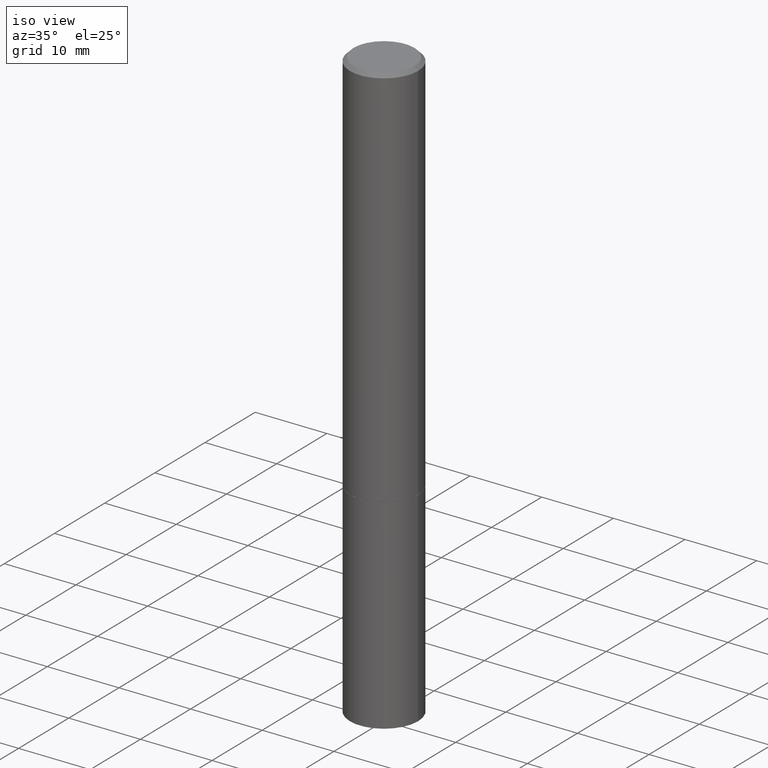
[diagram: clean part render]
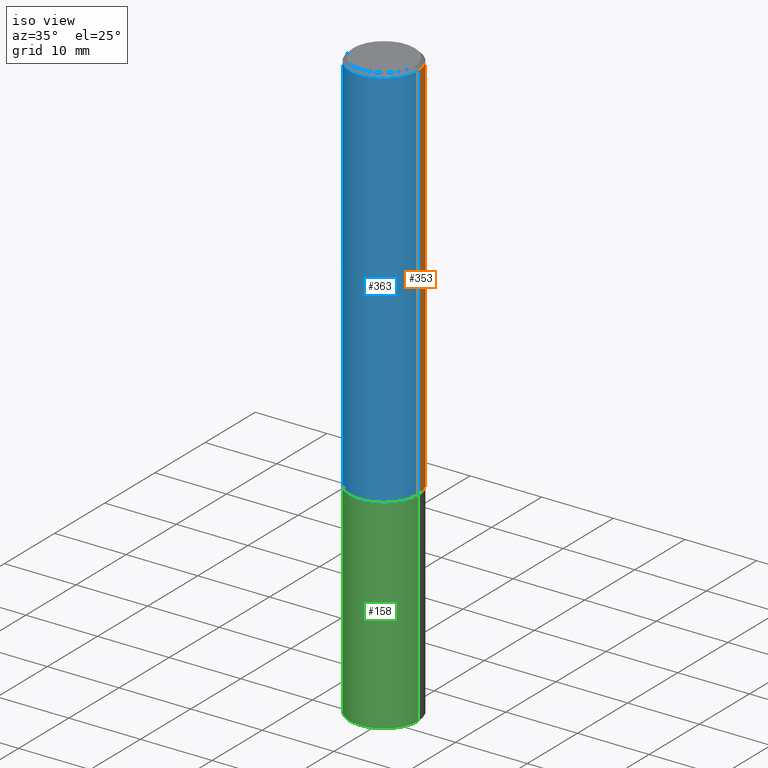
[diagram: same view with three faces highlighted in distinct colors, each labeled with its STEP entity id]
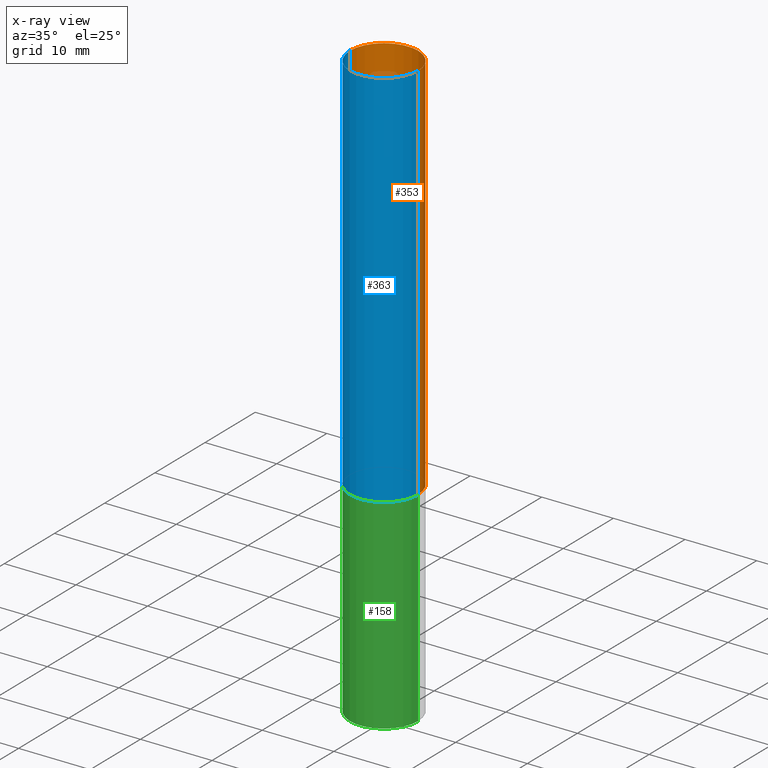
[diagram: x-ray of the same camera — body ghosted, the three highlighted faces saturated]
A machine part, iso view with three faces highlighted in distinct colors.
The next image is the same camera in x-ray (body ghosted, the three faces saturated) — at least one of them is partly hidden behind the body in this view.
Their STEP definitions:

[orange] entity #353 — the highlighted cylindrical surface (partial cylindrical patch) has radius 4.7625 mm, axis along (-0, 0, 1).
#4 = AXIS2_PLACEMENT_3D ( 'NONE', #116, #366, #5 ) ;
#5 = DIRECTION ( 'NONE',  ( 1.000000000000000000, -6.982962677686266711E-15, 0.000000000000000000 ) ) ;
#11 = AXIS2_PLACEMENT_3D ( 'NONE', #104, #349, #330 ) ;
#13 = ORIENTED_EDGE ( 'NONE', *, *, #143, .F. ) ;
#22 = CARTESIAN_POINT ( 'NONE',  ( -0.1874999999999997502, 1.239475875289309935E-15, -0.02000000000000004205 ) ) ;
#49 = DIRECTION ( 'NONE',  ( -2.445468806185136877E-29, 3.491481338843145188E-15, 1.000000000000000000 ) ) ;
#50 = EDGE_CURVE ( 'NONE', #120, #173, #259, .T. ) ;
#55 = VERTEX_POINT ( 'NONE', #323 ) ;
#57 = VERTEX_POINT ( 'NONE', #126 ) ;
#66 = LINE ( 'NONE', #357, #342 ) ;
#70 = ORIENTED_EDGE ( 'NONE', *, *, #138, .T. ) ;
#88 = DIRECTION ( 'NONE',  ( 1.000000000000000000, -6.982962677686265922E-15, 4.876176775795935793E-29 ) ) ;
#91 = DIRECTION ( 'NONE',  ( -2.445468806185136597E-29, 3.491481338843145583E-15, 1.000000000000000000 ) ) ;
#95 = ORIENTED_EDGE ( 'NONE', *, *, #352, .T. ) ;
#104 = CARTESIAN_POINT ( 'NONE',  ( 4.890937612370283668E-31, -6.982962677686305168E-17, -0.02000000000000004205 ) ) ;
#116 = CARTESIAN_POINT ( 'NONE',  ( 5.194175744337229665E-29, -7.415906363702840616E-15, -2.123999999999999666 ) ) ;
#120 = VERTEX_POINT ( 'NONE', #355 ) ;
#126 = CARTESIAN_POINT ( 'NONE',  ( -0.1875000000000000278, -2.410600365689662531E-15, -2.123999999999999666 ) ) ;
#138 = EDGE_CURVE ( 'NONE', #57, #173, #66, .T. ) ;
#143 = EDGE_CURVE ( 'NONE', #55, #120, #361, .T. ) ;
#144 = FACE_OUTER_BOUND ( 'NONE', #295, .T. ) ;
#145 = ORIENTED_EDGE ( 'NONE', *, *, #50, .F. ) ;
#173 = VERTEX_POINT ( 'NONE', #22 ) ;
#220 = AXIS2_PLACEMENT_3D ( 'NONE', #291, #91, #88 ) ;
#259 = CIRCLE ( 'NONE', #11, 0.1874999999999997502 ) ;
#269 = VECTOR ( 'NONE', #279, 39.37007874015748143 ) ;
#279 = DIRECTION ( 'NONE',  ( -2.445468806185136877E-29, 3.491481338843145188E-15, 1.000000000000000000 ) ) ;
#281 = CYLINDRICAL_SURFACE ( 'NONE', #220, 0.1874999999999998890 ) ;
#291 = CARTESIAN_POINT ( 'NONE',  ( 0.000000000000000000, 0.000000000000000000, 0.000000000000000000 ) ) ;
#295 = EDGE_LOOP ( 'NONE', ( #95, #70, #145, #13 ) ) ;
#305 = CARTESIAN_POINT ( 'NONE',  ( 0.1874999999999998890, -1.309305502066174022E-15, 9.142831454617374006E-30 ) ) ;
#306 = CIRCLE ( 'NONE', #4, 0.1875000000000000278 ) ;
#323 = CARTESIAN_POINT ( 'NONE',  ( 0.1875000000000000278, -8.725211865769015625E-15, -2.123999999999999666 ) ) ;
#330 = DIRECTION ( 'NONE',  ( 1.000000000000000000, -6.982962677686265133E-15, 0.000000000000000000 ) ) ;
#342 = VECTOR ( 'NONE', #49, 39.37007874015748143 ) ;
#349 = DIRECTION ( 'NONE',  ( -2.445468806185136597E-29, 3.491481338843145583E-15, 1.000000000000000000 ) ) ;
#352 = EDGE_CURVE ( 'NONE', #55, #57, #306, .T. ) ;
#353 = ADVANCED_FACE ( 'NONE', ( #144 ), #281, .T. ) ;
#355 = CARTESIAN_POINT ( 'NONE',  ( 0.1874999999999997502, -1.356173001359023494E-15, -0.02000000000000004205 ) ) ;
#357 = CARTESIAN_POINT ( 'NONE',  ( -0.1874999999999998890, 1.332267629550187060E-15, -9.223003294227942385E-30 ) ) ;
#361 = LINE ( 'NONE', #305, #269 ) ;
#366 = DIRECTION ( 'NONE',  ( -2.445468806185136597E-29, 3.491481338843145583E-15, 1.000000000000000000 ) ) ;

[blue] entity #363 — the highlighted cylindrical surface (partial cylindrical patch) has radius 4.7625 mm, axis along (-0, 0, 1).
#22 = CARTESIAN_POINT ( 'NONE',  ( -0.1874999999999997502, 1.239475875289309935E-15, -0.02000000000000004205 ) ) ;
#27 = AXIS2_PLACEMENT_3D ( 'NONE', #80, #83, #111 ) ;
#49 = DIRECTION ( 'NONE',  ( -2.445468806185136877E-29, 3.491481338843145188E-15, 1.000000000000000000 ) ) ;
#55 = VERTEX_POINT ( 'NONE', #323 ) ;
#56 = CYLINDRICAL_SURFACE ( 'NONE', #97, 0.1874999999999998890 ) ;
#57 = VERTEX_POINT ( 'NONE', #126 ) ;
#66 = LINE ( 'NONE', #357, #342 ) ;
#80 = CARTESIAN_POINT ( 'NONE',  ( 5.194175744337229665E-29, -7.415906363702840616E-15, -2.123999999999999666 ) ) ;
#83 = DIRECTION ( 'NONE',  ( -2.445468806185136597E-29, 3.491481338843145583E-15, 1.000000000000000000 ) ) ;
#97 = AXIS2_PLACEMENT_3D ( 'NONE', #149, #117, #177 ) ;
#111 = DIRECTION ( 'NONE',  ( 1.000000000000000000, -6.982962677686266711E-15, 0.000000000000000000 ) ) ;
#117 = DIRECTION ( 'NONE',  ( -2.445468806185136597E-29, 3.491481338843145583E-15, 1.000000000000000000 ) ) ;
#120 = VERTEX_POINT ( 'NONE', #355 ) ;
#126 = CARTESIAN_POINT ( 'NONE',  ( -0.1875000000000000278, -2.410600365689662531E-15, -2.123999999999999666 ) ) ;
#138 = EDGE_CURVE ( 'NONE', #57, #173, #66, .T. ) ;
#143 = EDGE_CURVE ( 'NONE', #55, #120, #361, .T. ) ;
#149 = CARTESIAN_POINT ( 'NONE',  ( 0.000000000000000000, 0.000000000000000000, 0.000000000000000000 ) ) ;
#152 = ORIENTED_EDGE ( 'NONE', *, *, #247, .T. ) ;
#159 = ORIENTED_EDGE ( 'NONE', *, *, #138, .F. ) ;
#173 = VERTEX_POINT ( 'NONE', #22 ) ;
#177 = DIRECTION ( 'NONE',  ( 1.000000000000000000, -6.982962677686265922E-15, 4.876176775795935793E-29 ) ) ;
#196 = DIRECTION ( 'NONE',  ( -2.445468806185136597E-29, 3.491481338843145583E-15, 1.000000000000000000 ) ) ;
#214 = EDGE_CURVE ( 'NONE', #173, #120, #317, .T. ) ;
#247 = EDGE_CURVE ( 'NONE', #57, #55, #354, .T. ) ;
#249 = DIRECTION ( 'NONE',  ( 1.000000000000000000, -6.982962677686265133E-15, 0.000000000000000000 ) ) ;
#269 = VECTOR ( 'NONE', #279, 39.37007874015748143 ) ;
#279 = DIRECTION ( 'NONE',  ( -2.445468806185136877E-29, 3.491481338843145188E-15, 1.000000000000000000 ) ) ;
#285 = EDGE_LOOP ( 'NONE', ( #159, #152, #351, #310 ) ) ;
#287 = FACE_OUTER_BOUND ( 'NONE', #285, .T. ) ;
#305 = CARTESIAN_POINT ( 'NONE',  ( 0.1874999999999998890, -1.309305502066174022E-15, 9.142831454617374006E-30 ) ) ;
#310 = ORIENTED_EDGE ( 'NONE', *, *, #214, .F. ) ;
#317 = CIRCLE ( 'NONE', #333, 0.1874999999999997502 ) ;
#323 = CARTESIAN_POINT ( 'NONE',  ( 0.1875000000000000278, -8.725211865769015625E-15, -2.123999999999999666 ) ) ;
#333 = AXIS2_PLACEMENT_3D ( 'NONE', #338, #196, #249 ) ;
#338 = CARTESIAN_POINT ( 'NONE',  ( 4.890937612370283668E-31, -6.982962677686305168E-17, -0.02000000000000004205 ) ) ;
#342 = VECTOR ( 'NONE', #49, 39.37007874015748143 ) ;
#351 = ORIENTED_EDGE ( 'NONE', *, *, #143, .T. ) ;
#354 = CIRCLE ( 'NONE', #27, 0.1875000000000000278 ) ;
#355 = CARTESIAN_POINT ( 'NONE',  ( 0.1874999999999997502, -1.356173001359023494E-15, -0.02000000000000004205 ) ) ;
#357 = CARTESIAN_POINT ( 'NONE',  ( -0.1874999999999998890, 1.332267629550187060E-15, -9.223003294227942385E-30 ) ) ;
#361 = LINE ( 'NONE', #305, #269 ) ;
#363 = ADVANCED_FACE ( 'NONE', ( #287 ), #56, .T. ) ;

[green] entity #158 — the highlighted cylindrical surface (partial cylindrical patch) has radius 4.7625 mm, axis along (-0, 0, 1).
#3 = AXIS2_PLACEMENT_3D ( 'NONE', #45, #308, #171 ) ;
#21 = DIRECTION ( 'NONE',  ( 1.000000000000000000, -6.982962677686261189E-15, 0.000000000000000000 ) ) ;
#44 = CIRCLE ( 'NONE', #3, 0.1875000000000000278 ) ;
#45 = CARTESIAN_POINT ( 'NONE',  ( 5.196621213143415268E-29, -7.419397845041683624E-15, -2.125000000000000000 ) ) ;
#51 = FACE_OUTER_BOUND ( 'NONE', #210, .T. ) ;
#53 = AXIS2_PLACEMENT_3D ( 'NONE', #303, #77, #21 ) ;
#63 = AXIS2_PLACEMENT_3D ( 'NONE', #360, #170, #168 ) ;
#77 = DIRECTION ( 'NONE',  ( -2.445468806185136597E-29, 3.491481338843145583E-15, 1.000000000000000000 ) ) ;
#90 = ORIENTED_EDGE ( 'NONE', *, *, #223, .F. ) ;
#107 = DIRECTION ( 'NONE',  ( -2.445468806185136877E-29, 3.491481338843145188E-15, 1.000000000000000000 ) ) ;
#123 = ORIENTED_EDGE ( 'NONE', *, *, #286, .F. ) ;
#132 = CARTESIAN_POINT ( 'NONE',  ( -0.1875000000000000278, 1.332267629550188046E-15, -9.223003294227947991E-30 ) ) ;
#136 = CARTESIAN_POINT ( 'NONE',  ( 0.1875000000000000278, -1.265661985330639786E-14, -3.250000000000000000 ) ) ;
#148 = ORIENTED_EDGE ( 'NONE', *, *, #254, .T. ) ;
#158 = ADVANCED_FACE ( 'NONE', ( #51 ), #193, .T. ) ;
#162 = VECTOR ( 'NONE', #107, 39.37007874015748143 ) ;
#165 = CARTESIAN_POINT ( 'NONE',  ( -0.1875000000000000278, -8.051088468590765387E-15, -2.125000000000000000 ) ) ;
#166 = CARTESIAN_POINT ( 'NONE',  ( -0.1875000000000000278, -8.051088468590765387E-15, -3.250000000000000000 ) ) ;
#168 = DIRECTION ( 'NONE',  ( 1.000000000000000000, -6.982962677686265922E-15, 4.876176775795935793E-29 ) ) ;
#170 = DIRECTION ( 'NONE',  ( -2.445468806185136597E-29, 3.491481338843145583E-15, 1.000000000000000000 ) ) ;
#171 = DIRECTION ( 'NONE',  ( 1.000000000000000000, -6.982962677686266711E-15, 0.000000000000000000 ) ) ;
#176 = VERTEX_POINT ( 'NONE', #166 ) ;
#191 = VERTEX_POINT ( 'NONE', #165 ) ;
#193 = CYLINDRICAL_SURFACE ( 'NONE', #63, 0.1875000000000000278 ) ;
#194 = VECTOR ( 'NONE', #277, 39.37007874015748143 ) ;
#210 = EDGE_LOOP ( 'NONE', ( #90, #148, #316, #123 ) ) ;
#213 = VERTEX_POINT ( 'NONE', #136 ) ;
#223 = EDGE_CURVE ( 'NONE', #176, #191, #242, .T. ) ;
#229 = VERTEX_POINT ( 'NONE', #304 ) ;
#242 = LINE ( 'NONE', #132, #194 ) ;
#246 = LINE ( 'NONE', #276, #162 ) ;
#254 = EDGE_CURVE ( 'NONE', #176, #213, #358, .T. ) ;
#274 = EDGE_CURVE ( 'NONE', #213, #229, #246, .T. ) ;
#276 = CARTESIAN_POINT ( 'NONE',  ( 0.1875000000000000278, -1.309305502066175008E-15, 9.142831454617381013E-30 ) ) ;
#277 = DIRECTION ( 'NONE',  ( -2.445468806185136877E-29, 3.491481338843145188E-15, 1.000000000000000000 ) ) ;
#286 = EDGE_CURVE ( 'NONE', #191, #229, #44, .T. ) ;
#303 = CARTESIAN_POINT ( 'NONE',  ( 7.947773620101693940E-29, -1.134731435124022443E-14, -3.250000000000000000 ) ) ;
#304 = CARTESIAN_POINT ( 'NONE',  ( 0.1875000000000000278, -8.728703347107858632E-15, -2.125000000000000000 ) ) ;
#308 = DIRECTION ( 'NONE',  ( -2.445468806185136597E-29, 3.491481338843145583E-15, 1.000000000000000000 ) ) ;
#316 = ORIENTED_EDGE ( 'NONE', *, *, #274, .T. ) ;
#358 = CIRCLE ( 'NONE', #53, 0.1875000000000000278 ) ;
#360 = CARTESIAN_POINT ( 'NONE',  ( 0.000000000000000000, 0.000000000000000000, 0.000000000000000000 ) ) ;